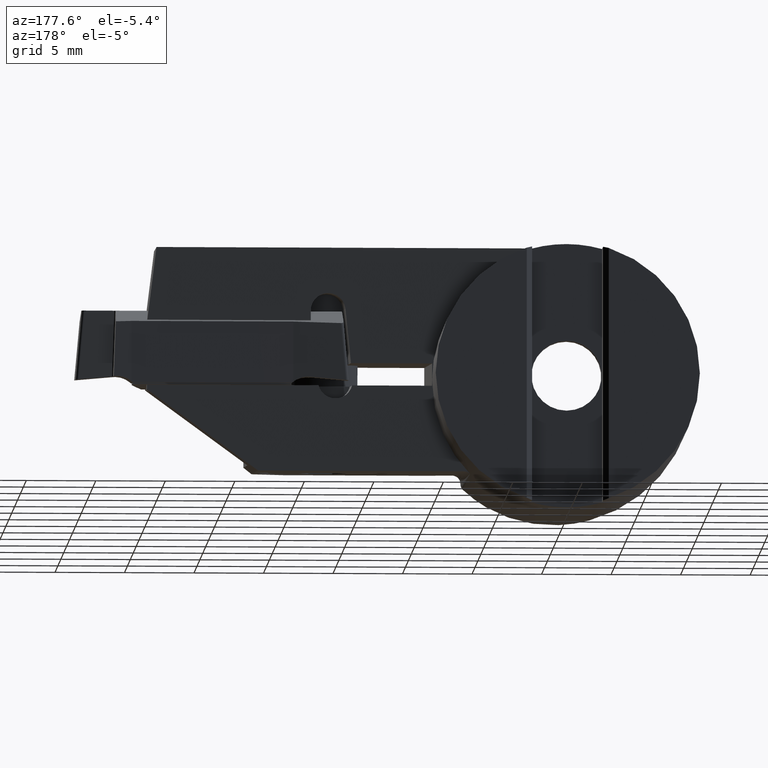
[diagram: clean part render]
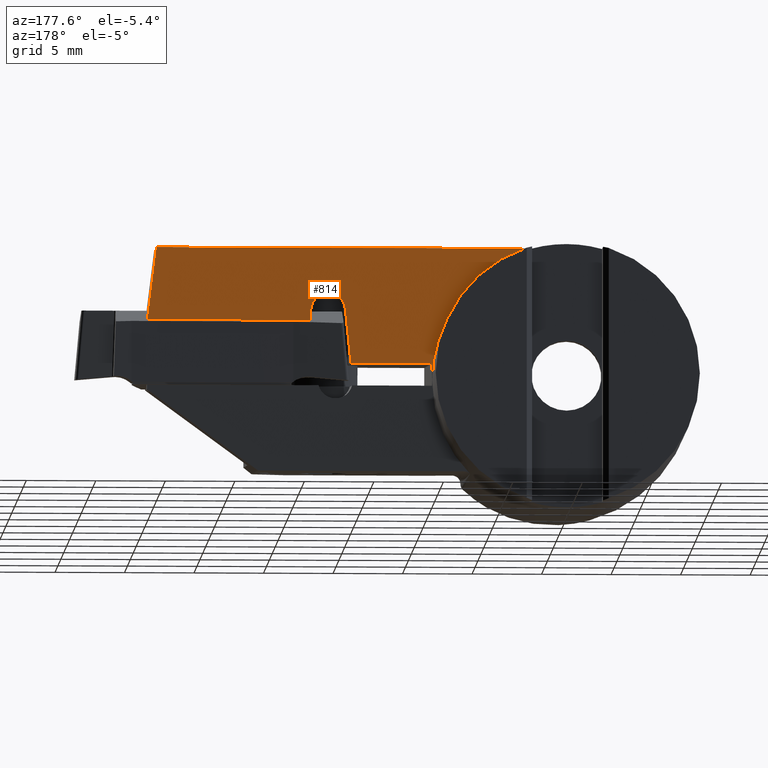
[diagram: same view with one face highlighted and labeled with its STEP entity id]
A machine part, auxiliary view. The second image highlights one B-rep face of the part: STEP entity #814.
In plain terms, the highlighted planar face has unit normal (0, -0.9976, 0.0698).
Its self-contained STEP definition (entity closure, byte-faithful):
#814=ADVANCED_FACE('NONE',(#2237),#2238,.F.);
#886=EDGE_CURVE('NONE',#1530,#1986,#2319,.F.);
#1032=VERTEX_POINT('NONE',#2474);
#1044=EDGE_CURVE('NONE',#1404,#1530,#2486,.F.);
#1134=EDGE_CURVE('NONE',#1986,#2116,#2588,.F.);
#1150=EDGE_CURVE('NONE',#1240,#1316,#2604,.T.);
#1174=EDGE_CURVE('NONE',#1404,#1664,#2630,.F.);
#1234=EDGE_CURVE('NONE',#1626,#1032,#2697,.F.);
#1240=VERTEX_POINT('NONE',#2705);
#1316=VERTEX_POINT('NONE',#2789);
#1404=VERTEX_POINT('NONE',#2884);
#1530=VERTEX_POINT('NONE',#3022);
#1534=EDGE_CURVE('NONE',#2116,#1240,#3027,.F.);
#1540=EDGE_CURVE('NONE',#1032,#1664,#3033,.T.);
#1626=VERTEX_POINT('NONE',#3127);
#1664=VERTEX_POINT('NONE',#3167);
#1778=VERTEX_POINT('NONE',#3296);
#1816=EDGE_CURVE('NONE',#1778,#1316,#3341,.T.);
#1986=VERTEX_POINT('NONE',#3529);
#2036=EDGE_CURVE('NONE',#1626,#1778,#3585,.T.);
#2116=VERTEX_POINT('NONE',#3673);
#2237=FACE_OUTER_BOUND('',#3917,.T.);
#2238=PLANE('',#3918);
#2319=LINE('',#4039,#4040);
#2474=CARTESIAN_POINT('',(0.0,-5.61117100890395,9.5));
#2486=LINE('',#4302,#4303);
#2588=CIRCLE('',#4473,1.25);
#2604=LINE('',#4529,#4530);
#2630=LINE('',#4563,#4564);
#2697=ELLIPSE('',#4703,9.52319803177113,9.5);
#2705=CARTESIAN_POINT('',(15.7468476307897,-5.91703796693021,5.12589871430902));
#2789=CARTESIAN_POINT('',(15.3358206412413,-6.18983185893737,1.22476430784599));
#2884=CARTESIAN_POINT('',(29.990375875515,-5.97498191980548,4.29726158264624));
#3022=CARTESIAN_POINT('',(18.24,-5.97498191980548,4.29726158264625));
#3027=CIRCLE('',#5367,1.25);
#3033=LINE('',#5378,#5379);
#3127=CARTESIAN_POINT('',(9.5,-6.27547572236723,0.0));
#3167=CARTESIAN_POINT('',(29.35,-5.61117100890395,9.5));
#3296=CARTESIAN_POINT('',(9.5,-6.18983185893737,1.22476430784599));
#3341=LINE('',#5940,#5941);
#3529=CARTESIAN_POINT('',(18.24,-5.92615238818451,4.99555641782812));
#3585=LINE('',#6414,#6415);
#3673=CARTESIAN_POINT('',(16.99,-5.83895679600445,6.24251148065291));
#3917=EDGE_LOOP('',(#6640,#6641,#6642,#6643,#6644,#6645,#6646,#6647,#6648,#6649));
#3918=AXIS2_PLACEMENT_3D('',#6650,#6651,#6652);
#4039=CARTESIAN_POINT('',(18.24,-6.35249095990274,-1.10136920867686));
#4040=VECTOR('',#6742,1.0);
#4302=CARTESIAN_POINT('',(18.9641016151378,-5.97498191980548,4.29726158264625));
#4303=VECTOR('',#6879,1.0);
#4473=AXIS2_PLACEMENT_3D('',#7017,#7018,#7019);
#4529=CARTESIAN_POINT('',(14.8264655802929,-6.52788496256034,-3.60962030411226));
#4530=VECTOR('',#7023,1.0);
#4563=CARTESIAN_POINT('',(30.1535447796913,-6.06768158250194,2.97159464431431));
#4564=VECTOR('',#7041,1.0);
#4703=AXIS2_PLACEMENT_3D('',#7112,#7113,#7114);
#5367=AXIS2_PLACEMENT_3D('',#7467,#7468,#7469);
#5378=CARTESIAN_POINT('',(3.46410161513775,-5.61117100890395,9.5));
#5379=VECTOR('',#7472,1.0);
#5940=CARTESIAN_POINT('',(18.4641016151378,-6.18983185893737,1.22476430784599));
#5941=VECTOR('',#7800,1.0);
#6414=CARTESIAN_POINT('',(9.5,-6.51572110846398,-3.43566908628481));
#6415=VECTOR('',#8080,1.0);
#6640=ORIENTED_EDGE('',*,*,#1540,.T.);
#6641=ORIENTED_EDGE('',*,*,#1174,.F.);
#6642=ORIENTED_EDGE('',*,*,#1044,.T.);
#6643=ORIENTED_EDGE('',*,*,#886,.T.);
#6644=ORIENTED_EDGE('',*,*,#1134,.T.);
#6645=ORIENTED_EDGE('',*,*,#1534,.T.);
#6646=ORIENTED_EDGE('',*,*,#1150,.T.);
#6647=ORIENTED_EDGE('',*,*,#1816,.F.);
#6648=ORIENTED_EDGE('',*,*,#2036,.F.);
#6649=ORIENTED_EDGE('',*,*,#1234,.T.);
#6650=CARTESIAN_POINT('',(6.92820323027551,-6.73,-6.5));
#6651=DIRECTION('',(0.0,-0.997564050259825,0.0697564737441181));
#6652=DIRECTION('',(-1.0,0.0,0.0));
#6742=DIRECTION('',(-2.41174423151302E-017,-0.0697564737441181,-0.997564050259825));
#6879=DIRECTION('',(1.0,0.0,0.0));
#7017=CARTESIAN_POINT('',(16.99,-5.92615238818451,4.99555641782812));
#7018=DIRECTION('',(0.0,0.997564050259825,-0.0697564737441181));
#7019=DIRECTION('',(0.0,0.0697564737441181,0.997564050259825));
#7023=DIRECTION('',(-0.104528463267658,-0.0693743404822075,-0.992099290015652));
#7041=DIRECTION('',(0.12186934340514,-0.0692365195667934,-0.99012835910112));
#7112=CARTESIAN_POINT('',(0.0,-6.27547572236723,0.0));
#7113=DIRECTION('',(0.0,0.997564050259825,-0.0697564737441181));
#7114=DIRECTION('',(0.0,0.0697564737441181,0.997564050259825));
#7467=CARTESIAN_POINT('',(16.99,-5.92615238818451,4.99555641782812));
#7468=DIRECTION('',(0.0,0.997564050259825,-0.0697564737441181));
#7469=DIRECTION('',(0.0,0.0697564737441181,0.997564050259825));
#7472=DIRECTION('',(1.0,0.0,0.0));
#7800=DIRECTION('',(1.0,0.0,0.0));
#8080=DIRECTION('',(0.0,0.0697564737441181,0.997564050259825));